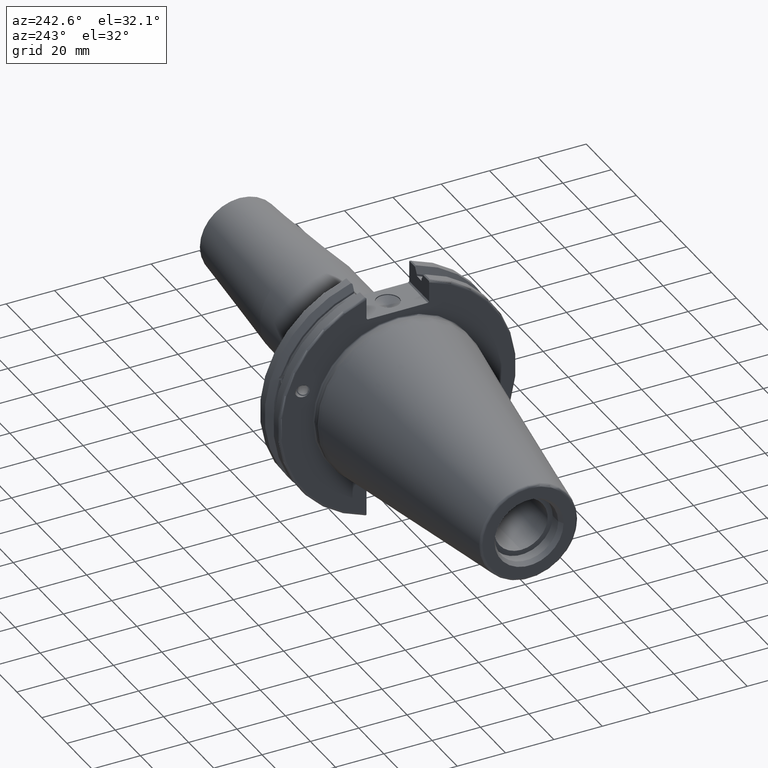
[diagram: clean part render]
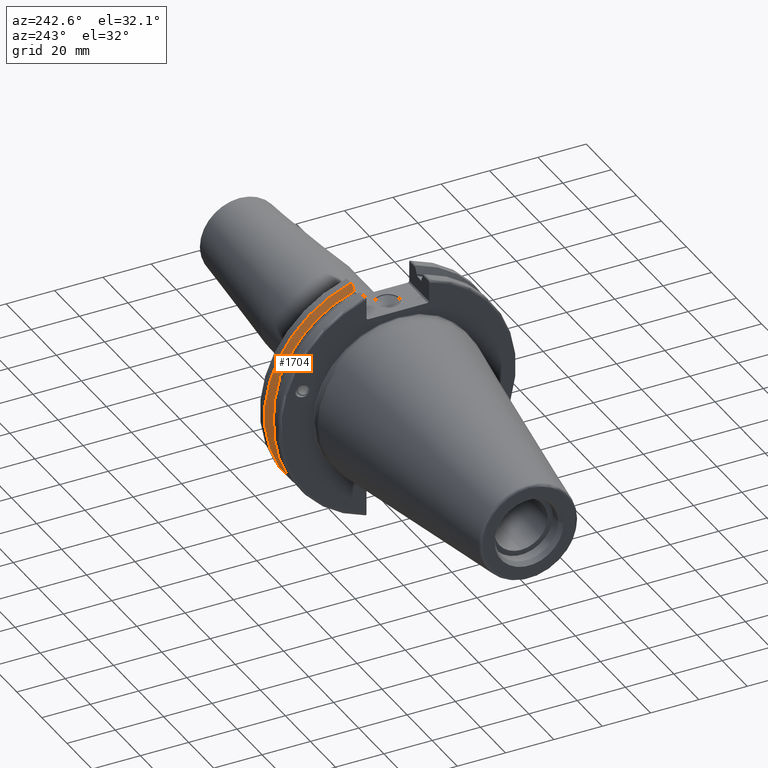
[diagram: same view with one face highlighted and labeled with its STEP entity id]
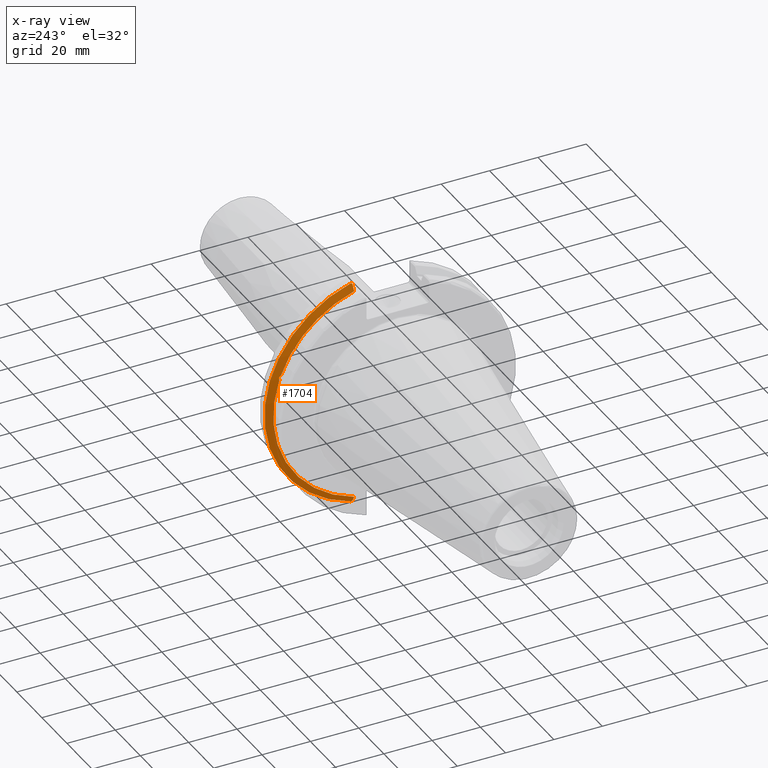
[diagram: x-ray of the same camera — body ghosted, the highlighted face saturated]
A machine part, auxiliary view. The second image highlights one B-rep face of the part: STEP entity #1704.
The next image is the same camera in x-ray: the body ghosted, the highlighted face saturated — about 0% of this face is hidden behind the body in this view.
In plain terms, the highlighted conical surface has half-angle 60 deg.
Its self-contained STEP definition (entity closure, byte-faithful):
#23=(
BOUNDED_CURVE()
B_SPLINE_CURVE(2,(#3175,#3176,#3177),.UNSPECIFIED.,.F.,.F.)
B_SPLINE_CURVE_WITH_KNOTS((3,3),(0.325260944932521,0.390084992222202),
 .UNSPECIFIED.)
CURVE()
GEOMETRIC_REPRESENTATION_ITEM()
RATIONAL_B_SPLINE_CURVE((1.00019140645994,1.00011477674864,1.))
REPRESENTATION_ITEM('')
);
#24=(
BOUNDED_CURVE()
B_SPLINE_CURVE(2,(#3189,#3190,#3191),.UNSPECIFIED.,.F.,.F.)
B_SPLINE_CURVE_WITH_KNOTS((3,3),(0.0558332664532001,0.331657177124504),
 .UNSPECIFIED.)
CURVE()
GEOMETRIC_REPRESENTATION_ITEM()
RATIONAL_B_SPLINE_CURVE((1.00012873636632,1.00038235574022,1.))
REPRESENTATION_ITEM('')
);
#29=(
BOUNDED_CURVE()
B_SPLINE_CURVE(2,(#3362,#3363,#3364),.UNSPECIFIED.,.F.,.F.)
B_SPLINE_CURVE_WITH_KNOTS((3,3),(0.,0.275823910671402),.UNSPECIFIED.)
CURVE()
GEOMETRIC_REPRESENTATION_ITEM()
RATIONAL_B_SPLINE_CURVE((1.,1.00038235574129,1.00012873636668))
REPRESENTATION_ITEM('')
);
#30=(
BOUNDED_CURVE()
B_SPLINE_CURVE(2,(#3379,#3380,#3381),.UNSPECIFIED.,.F.,.F.)
B_SPLINE_CURVE_WITH_KNOTS((3,3),(0.,0.0648240472897064),.UNSPECIFIED.)
CURVE()
GEOMETRIC_REPRESENTATION_ITEM()
RATIONAL_B_SPLINE_CURVE((1.,1.00011477674844,1.00019140645961))
REPRESENTATION_ITEM('')
);
#88=CONICAL_SURFACE('',#1912,47.8172386482472,1.0471975511966);
#129=B_SPLINE_CURVE_WITH_KNOTS('',3,(#2958,#2959,#2960,#2961,#2962,#2963,
#2964,#2965),.UNSPECIFIED.,.F.,.F.,(4,2,2,4),(0.426712868358719,0.441644498666905,
0.480313313223129,0.518982127779353),.UNSPECIFIED.);
#133=B_SPLINE_CURVE_WITH_KNOTS('',3,(#3020,#3021,#3022,#3023,#3024,#3025,
#3026,#3027),.UNSPECIFIED.,.F.,.F.,(4,2,2,4),(0.518982127779353,0.557650942335576,
0.5963197568918,0.611251387199989),.UNSPECIFIED.);
#224=FACE_OUTER_BOUND('',#329,.T.);
#329=EDGE_LOOP('',(#1534,#1535,#1536,#1537,#1538,#1539,#1540,#1541,#1542));
#591=CIRCLE('',#1832,46.4219772964944);
#626=CIRCLE('',#1903,49.2125);
#631=CIRCLE('',#1913,46.4219772964944);
#729=VERTEX_POINT('',#2955);
#730=VERTEX_POINT('',#2957);
#737=VERTEX_POINT('',#3018);
#746=VERTEX_POINT('',#3059);
#781=VERTEX_POINT('',#3172);
#782=VERTEX_POINT('',#3174);
#811=VERTEX_POINT('',#3359);
#812=VERTEX_POINT('',#3361);
#815=VERTEX_POINT('',#3377);
#936=EDGE_CURVE('',#730,#729,#129,.T.);
#944=EDGE_CURVE('',#729,#737,#133,.T.);
#956=EDGE_CURVE('',#746,#730,#591,.T.);
#1000=EDGE_CURVE('',#781,#782,#23,.T.);
#1005=EDGE_CURVE('',#781,#746,#24,.T.);
#1054=EDGE_CURVE('',#812,#811,#29,.T.);
#1062=EDGE_CURVE('',#815,#811,#30,.T.);
#1063=EDGE_CURVE('',#782,#815,#626,.T.);
#1071=EDGE_CURVE('',#737,#812,#631,.T.);
#1534=ORIENTED_EDGE('',*,*,#936,.T.);
#1535=ORIENTED_EDGE('',*,*,#944,.T.);
#1536=ORIENTED_EDGE('',*,*,#1071,.T.);
#1537=ORIENTED_EDGE('',*,*,#1054,.T.);
#1538=ORIENTED_EDGE('',*,*,#1062,.F.);
#1539=ORIENTED_EDGE('',*,*,#1063,.F.);
#1540=ORIENTED_EDGE('',*,*,#1000,.F.);
#1541=ORIENTED_EDGE('',*,*,#1005,.T.);
#1542=ORIENTED_EDGE('',*,*,#956,.T.);
#1704=ADVANCED_FACE('',(#224),#88,.T.);
#1832=AXIS2_PLACEMENT_3D('',#3060,#2168,#2169);
#1903=AXIS2_PLACEMENT_3D('',#3383,#2357,#2358);
#1912=AXIS2_PLACEMENT_3D('',#3400,#2378,#2379);
#1913=AXIS2_PLACEMENT_3D('',#3401,#2380,#2381);
#2168=DIRECTION('center_axis',(1.,0.,0.));
#2169=DIRECTION('ref_axis',(0.,0.,-1.));
#2357=DIRECTION('center_axis',(1.,0.,0.));
#2358=DIRECTION('ref_axis',(0.,0.,-1.));
#2378=DIRECTION('center_axis',(1.,0.,0.));
#2379=DIRECTION('ref_axis',(0.,1.,0.));
#2380=DIRECTION('center_axis',(1.,0.,0.));
#2381=DIRECTION('ref_axis',(0.,0.,-1.));
#2955=CARTESIAN_POINT('',(13.2341,43.923494649906,15.9868446375166));
#2957=CARTESIAN_POINT('',(13.0491,43.9096390749305,15.0646464421033));
#2958=CARTESIAN_POINT('Ctrl Pts',(13.0491,43.9096390749305,15.0646464421033));
#2959=CARTESIAN_POINT('Ctrl Pts',(13.0660815609661,43.9250360001461,15.1104047527575));
#2960=CARTESIAN_POINT('Ctrl Pts',(13.0821132459668,43.9385582852181,15.1564111356409));
#2961=CARTESIAN_POINT('Ctrl Pts',(13.1358132615496,43.9797830409459,15.3217566390709));
#2962=CARTESIAN_POINT('Ctrl Pts',(13.1719838933644,43.9989016655819,15.4570249042868));
#2963=CARTESIAN_POINT('Ctrl Pts',(13.2212913174802,43.9931221605126,15.7289849146254));
#2964=CARTESIAN_POINT('Ctrl Pts',(13.2341,43.9675796948952,15.8657219718732));
#2965=CARTESIAN_POINT('Ctrl Pts',(13.2341,43.923494649906,15.9868446375166));
#3018=CARTESIAN_POINT('',(13.0491,43.3201030900029,16.684383248648));
#3020=CARTESIAN_POINT('Ctrl Pts',(13.2341,43.923494649906,15.9868446375166));
#3021=CARTESIAN_POINT('Ctrl Pts',(13.2341,43.8794096049169,16.10796730316));
#3022=CARTESIAN_POINT('Ctrl Pts',(13.2212913174802,43.8110833825827,16.2291323464527));
#3023=CARTESIAN_POINT('Ctrl Pts',(13.1719838933644,43.6406982153492,16.441180795372));
#3024=CARTESIAN_POINT('Ctrl Pts',(13.1358132615496,43.5391037343221,16.5325130832406));
#3025=CARTESIAN_POINT('Ctrl Pts',(13.0821132459668,43.4012416983557,16.6326763251437));
#3026=CARTESIAN_POINT('Ctrl Pts',(13.0660815609661,43.3613106941341,16.6592273018006));
#3027=CARTESIAN_POINT('Ctrl Pts',(13.0491,43.3201030900029,16.684383248648));
#3059=CARTESIAN_POINT('',(13.0491,12.95,-44.5791147973605));
#3060=CARTESIAN_POINT('Origin',(13.0491,0.,0.));
#3172=CARTESIAN_POINT('',(14.3818103943757,12.95,-46.9780755322918));
#3174=CARTESIAN_POINT('',(14.6602090340487,13.4317035994433,-47.3440544806494));
#3175=CARTESIAN_POINT('Ctrl Pts',(14.3818103943757,12.95,-46.9780755322918));
#3176=CARTESIAN_POINT('Ctrl Pts',(14.5199310333617,13.1896660169965,-47.1601640966264));
#3177=CARTESIAN_POINT('Ctrl Pts',(14.6602090340487,13.4317035994433,-47.3440544806494));
#3189=CARTESIAN_POINT('Ctrl Pts',(14.3818103943757,12.95,-46.9780755322918));
#3190=CARTESIAN_POINT('Ctrl Pts',(13.6979955094851,12.95,-45.7494966802933));
#3191=CARTESIAN_POINT('Ctrl Pts',(13.0491,12.95,-44.5791147973604));
#3359=CARTESIAN_POINT('',(14.3818103943757,12.95,46.9780755322918));
#3361=CARTESIAN_POINT('',(13.0491,12.95,44.5791147973604));
#3362=CARTESIAN_POINT('Ctrl Pts',(13.0491,12.95,44.5791147973604));
#3363=CARTESIAN_POINT('Ctrl Pts',(13.6979955094846,12.95,45.7494966802924));
#3364=CARTESIAN_POINT('Ctrl Pts',(14.3818103943757,12.95,46.9780755322918));
#3377=CARTESIAN_POINT('',(14.6602090340487,13.4317035994433,47.3440544806494));
#3379=CARTESIAN_POINT('Ctrl Pts',(14.6602090340487,13.4317035994433,47.3440544806494));
#3380=CARTESIAN_POINT('Ctrl Pts',(14.5199310333618,13.1896660169966,47.1601640966264));
#3381=CARTESIAN_POINT('Ctrl Pts',(14.3818103943757,12.95,46.9780755322918));
#3383=CARTESIAN_POINT('Origin',(14.6602090340487,0.,0.));
#3400=CARTESIAN_POINT('Origin',(13.8546545170244,0.,0.));
#3401=CARTESIAN_POINT('Origin',(13.0491,0.,0.));